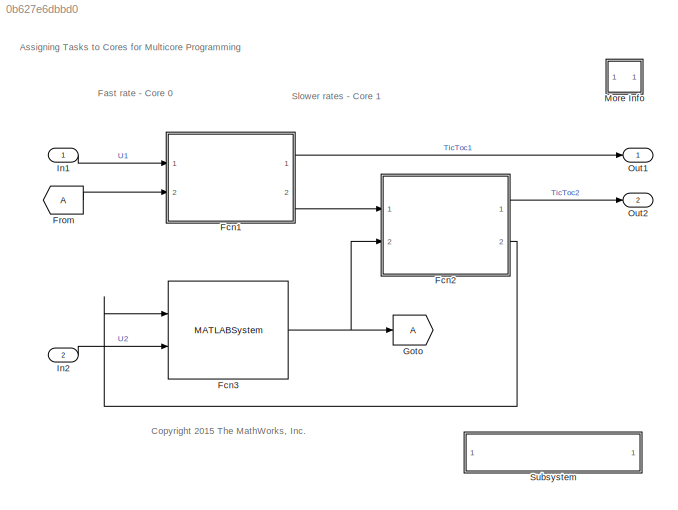
MODEL slx_0b627e6dbbd0
KIND model
CONFIG AbsTol = auto
CONFIG EnableMultiTasking = on
CONFIG FixedStep = .1
CONFIG MaxStep = auto
CONFIG MinStep = auto
CONFIG RelTol = 1e-3
CONFIG SampleTimeConstraint = Unconstrained
CONFIG Solver = FixedStepDiscrete
CONFIG SolverName = FixedStepDiscrete
CONFIG StartTime = 0.0
CONFIG StopTime = 100
BLOCK [ModelReference] Fcn1
  ModelNameDialog = slexMulticoreFcn1
  ModelReferenceVersion = 1.262
  Ports = [2, 2]
  Variant = off
BLOCK [ModelReference] Fcn2
  ModelNameDialog = slexMulticoreFcn2
  ModelReferenceVersion = 1.269
  Ports = [2, 2]
  Variant = off
BLOCK [MATLABSystem] Fcn3
  MaskDisplay = disp('Fcn3');\nport_label('input',1,'u1');\nport_label('input',2,'u2');\nport_label('output',1,'Multiplier');
  MaskType = slexMulticoreFcn3
  Ports = [2, 1]
  SimulateUsing = Interpreted execution
  System = slexMulticoreFcn3
  nIter = nIter
BLOCK [From] From
BLOCK [Goto] Goto
BLOCK [Inport] In1
  IconDisplay = Port number
  SampleTime = .1
BLOCK [Inport] In2
  IconDisplay = Port number
  OutDataTypeStr = double
  Port = 2
  PortDimensions = 1
  SamplingMode = Sample based
  SignalType = real
  VarSizeSig = No
BLOCK [SubSystem] More Info
  OpenFcn = showdemo('slexMulticoreExampleScript')
  Ports = []
  RequestExecContextInheritance = off
  Variant = off
BLOCK [Outport] Out1
  IconDisplay = Port number
BLOCK [Outport] Out2
  IconDisplay = Port number
  Port = 2
BLOCK [SubSystem] Subsystem
  OpenFcn = Simulink.architecture.profile(bdroot,20);
  Ports = []
  RequestExecContextInheritance = off
  Variant = off
ANNOTATION (root): Assigning Tasks to Cores for Multicore Programming
ANNOTATION (root): <copyright redacted>
ANNOTATION (root): Fast rate - Core 0
ANNOTATION (root): Slower rates - Core 1
LINE Fcn1:1 -> Out1:1
LINE Fcn1:2 -> Fcn2:1
LINE Fcn2:1 -> Out2:1
LINE Fcn2:2 -> Fcn3:1
NET Fcn3:1 -> Fcn2:2, Goto:1
LINE From:1 -> Fcn1:2
LINE In1:1 -> Fcn1:1
LINE In2:1 -> Fcn3:2
note: NET lines group one-source signal fan-out (src -> all destinations, sorted); 1:1 wires keep LINE
